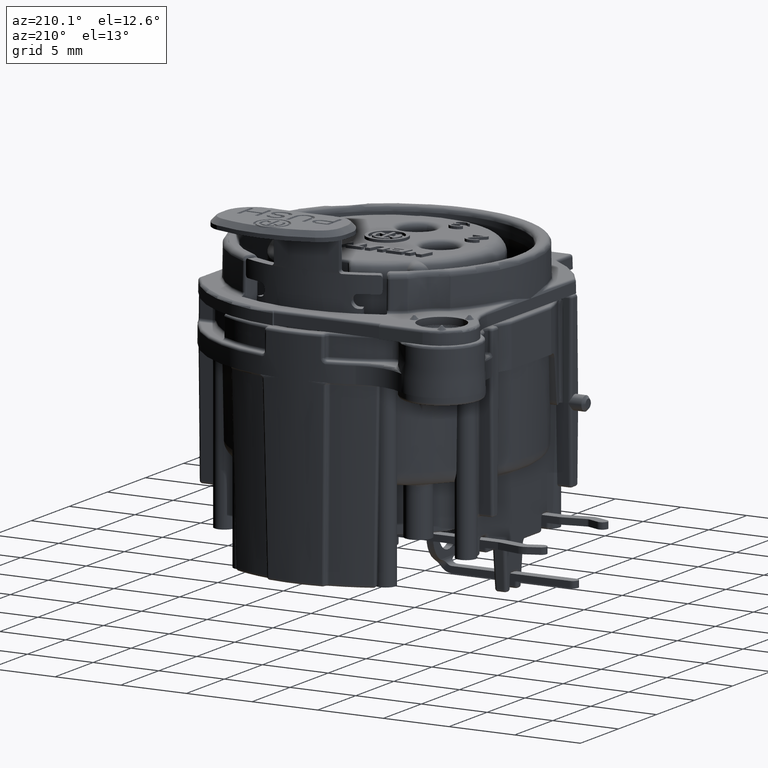
[diagram: clean part render]
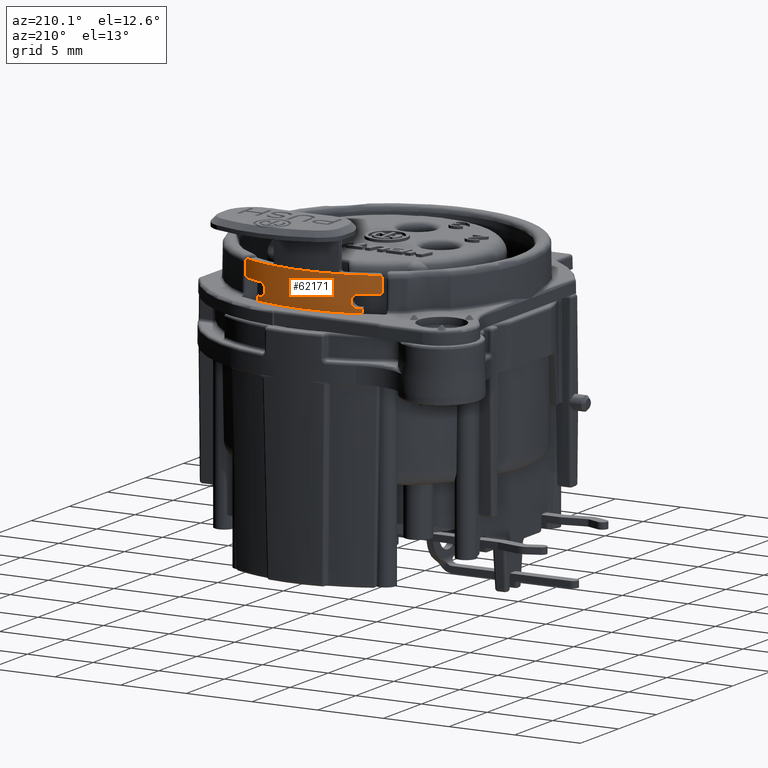
[diagram: same view with one face highlighted and labeled with its STEP entity id]
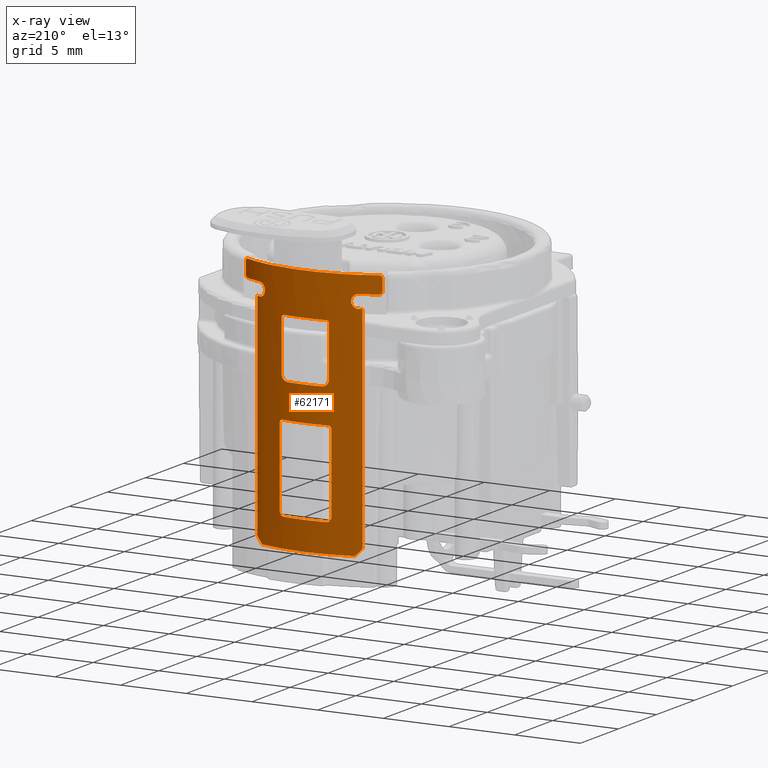
[diagram: x-ray of the same camera — body ghosted, the highlighted face saturated]
A machine part, auxiliary view. The second image highlights one B-rep face of the part: STEP entity #62171.
The next image is the same camera in x-ray: the body ghosted, the highlighted face saturated — about 0% of this face is hidden behind the body in this view.
In plain terms, the highlighted cylindrical surface (partial cylindrical patch) has radius 10.9 mm, axis along (0, 0, 1).
Its self-contained STEP definition (entity closure, byte-faithful):
#16958=CARTESIAN_POINT('',(0.E0,0.E0,5.75E0));
#16959=DIRECTION('',(0.E0,0.E0,1.E0));
#16960=DIRECTION('',(-3.441377443113E-1,9.389191727408E-1,0.E0));
#16961=AXIS2_PLACEMENT_3D('',#16958,#16959,#16960);
#16973=CARTESIAN_POINT('',(0.E0,0.E0,5.75E0));
#16974=DIRECTION('',(0.E0,0.E0,1.E0));
#16975=DIRECTION('',(4.603378714035E-1,8.877437942062E-1,0.E0));
#16976=AXIS2_PLACEMENT_3D('',#16973,#16974,#16975);
#17001=CARTESIAN_POINT('',(-3.751101412993E0,1.023421898288E1,4.75E0));
#17002=CARTESIAN_POINT('',(-3.706293553371E0,1.025064220245E1,4.75E0));
#17003=CARTESIAN_POINT('',(-3.616542525587E0,1.028284999959E1,
4.763803877901E0));
#17004=CARTESIAN_POINT('',(-3.493003251731E0,1.032539846351E1,
4.823273141545E0));
#17005=CARTESIAN_POINT('',(-3.388866338631E0,1.035994872259E1,
4.918439172250E0));
#17006=CARTESIAN_POINT('',(-3.315232344233E0,1.038365767008E1,
5.038462333102E0));
#17007=CARTESIAN_POINT('',(-3.275971002619E0,1.039606050945E1,
5.178665732796E0));
#17008=CARTESIAN_POINT('',(-3.275971002619E0,1.039606050945E1,
5.321334267204E0));
#17009=CARTESIAN_POINT('',(-3.315232344233E0,1.038365767008E1,
5.461537666898E0));
#17010=CARTESIAN_POINT('',(-3.388866338631E0,1.035994872259E1,
5.581560827750E0));
#17011=CARTESIAN_POINT('',(-3.493003251731E0,1.032539846351E1,
5.676726858455E0));
#17012=CARTESIAN_POINT('',(-3.616542525587E0,1.028284999959E1,
5.736196122099E0));
#17013=CARTESIAN_POINT('',(-3.706293553371E0,1.025064220245E1,5.75E0));
#17014=CARTESIAN_POINT('',(-3.751101412993E0,1.023421898288E1,5.75E0));
#17025=CARTESIAN_POINT('',(0.E0,0.E0,4.75E0));
#17026=DIRECTION('',(0.E0,0.E0,-1.E0));
#17027=DIRECTION('',(-3.669883419622E-1,9.302255408576E-1,0.E0));
#17028=AXIS2_PLACEMENT_3D('',#17025,#17026,#17027);
#17030=CARTESIAN_POINT('',(0.E0,0.E0,4.75E0));
#17031=DIRECTION('',(0.E0,0.E0,-1.E0));
#17032=DIRECTION('',(3.441377443113E-1,9.389191727408E-1,0.E0));
#17033=AXIS2_PLACEMENT_3D('',#17030,#17031,#17032);
#17051=CARTESIAN_POINT('',(-3.943549671944E0,1.016161483156E1,
-1.151080355221E1));
#17053=CARTESIAN_POINT('',(-3.943549671944E0,1.016161483156E1,
-1.151080355221E1));
#17054=CARTESIAN_POINT('',(-3.955758154357E0,1.015687692743E1,
-1.149770815447E1));
#17055=CARTESIAN_POINT('',(-3.976090005614E0,1.014893801995E1,
-1.146919022792E1));
#17056=CARTESIAN_POINT('',(-3.995771633983E0,1.014119667473E1,
-1.141813261460E1));
#17057=CARTESIAN_POINT('',(-4.000172927388E0,1.013945839535E1,
-1.138253099736E1));
#17058=CARTESIAN_POINT('',(-4.000172927388E0,1.013945839535E1,
-1.136400926445E1));
#17077=CARTESIAN_POINT('',(-3.588389503554E0,1.029239820308E1,
-1.188917858461E1));
#17078=CARTESIAN_POINT('',(-3.707556921992E0,1.025085112095E1,
-1.176307871356E1));
#17079=CARTESIAN_POINT('',(-3.825943333947E0,1.020725584859E1,
-1.163695369275E1));
#17080=CARTESIAN_POINT('',(-3.943549671944E0,1.016161483156E1,
-1.151080355221E1));
#17099=CARTESIAN_POINT('',(-3.449321041361E0,1.033983483203E1,-1.195E1));
#17100=CARTESIAN_POINT('',(-3.466906643519E0,1.033396835654E1,-1.195E1));
#17101=CARTESIAN_POINT('',(-3.500680539296E0,1.032260448701E1,
-1.194526651998E1));
#17102=CARTESIAN_POINT('',(-3.549039727289E0,1.030606960005E1,
-1.192411079150E1));
#17103=CARTESIAN_POINT('',(-3.576010527338E0,1.029671406683E1,
-1.190227769614E1));
#17104=CARTESIAN_POINT('',(-3.588389503554E0,1.029239820308E1,
-1.188917858461E1));
#17111=CARTESIAN_POINT('',(0.E0,0.E0,-1.195E1));
#17112=DIRECTION('',(0.E0,0.E0,-1.E0));
#17113=DIRECTION('',(-3.164514716845E-1,9.486087001861E-1,0.E0));
#17114=AXIS2_PLACEMENT_3D('',#17111,#17112,#17113);
#17121=CARTESIAN_POINT('',(3.588389532928E0,1.029239819284E1,
-1.188917855353E1));
#17122=CARTESIAN_POINT('',(3.576010550398E0,1.029671405883E1,
-1.190227767175E1));
#17123=CARTESIAN_POINT('',(3.549039736584E0,1.030606959688E1,
-1.192411077827E1));
#17124=CARTESIAN_POINT('',(3.500680523882E0,1.032260449229E1,
-1.194526651756E1));
#17125=CARTESIAN_POINT('',(3.466906610821E0,1.033396836753E1,-1.195E1));
#17126=CARTESIAN_POINT('',(3.449320999656E0,1.033983484594E1,-1.195E1));
#17140=CARTESIAN_POINT('',(3.588389532928E0,1.029239819284E1,
-1.188917855353E1));
#17141=CARTESIAN_POINT('',(3.707556941448E0,1.025085111378E1,
-1.176307869283E1));
#17142=CARTESIAN_POINT('',(3.825943343612E0,1.020725584484E1,
-1.163695368238E1));
#17143=CARTESIAN_POINT('',(3.943549671944E0,1.016161483156E1,
-1.151080355221E1));
#17150=CARTESIAN_POINT('',(3.943549671944E0,1.016161483156E1,
-1.151080355221E1));
#17162=CARTESIAN_POINT('',(4.000172927388E0,1.013945839535E1,
-1.136400926445E1));
#17167=CARTESIAN_POINT('',(4.000172927388E0,1.013945839535E1,
-1.136400926445E1));
#17168=CARTESIAN_POINT('',(4.000172927388E0,1.013945839535E1,
-1.138253099736E1));
#17169=CARTESIAN_POINT('',(3.995771633983E0,1.014119667473E1,
-1.141813261460E1));
#17170=CARTESIAN_POINT('',(3.976090005614E0,1.014893801995E1,
-1.146919022792E1));
#17171=CARTESIAN_POINT('',(3.955758154357E0,1.015687692743E1,
-1.149770815447E1));
#17172=CARTESIAN_POINT('',(3.943549671944E0,1.016161483156E1,
-1.151080355221E1));
#17174=DIRECTION('',(0.E0,0.E0,-1.E0));
#17175=VECTOR('',#17174,1.611400926445E1);
#17176=CARTESIAN_POINT('',(4.000172927388E0,1.013945839535E1,4.75E0));
#17177=LINE('',#17176,#17175);
#17178=DIRECTION('',(0.E0,0.E0,1.E0));
#17179=VECTOR('',#17178,8.848E-1);
#17180=CARTESIAN_POINT('',(5.201030486830E0,9.579106528015E0,5.9576E0));
#17181=LINE('',#17180,#17179);
#17182=CARTESIAN_POINT('',(0.E0,0.E0,7.05E0));
#17183=DIRECTION('',(0.E0,0.E0,1.E0));
#17184=DIRECTION('',(2.451565970441E-1,9.694834928588E-1,0.E0));
#17185=AXIS2_PLACEMENT_3D('',#17182,#17183,#17184);
#17187=DIRECTION('',(0.E0,0.E0,-1.E0));
#17188=VECTOR('',#17187,1.611400926445E1);
#17189=CARTESIAN_POINT('',(-4.000172927388E0,1.013945839535E1,4.75E0));
#17190=LINE('',#17189,#17188);
#17191=CARTESIAN_POINT('',(0.E0,0.E0,-6.5E-1));
#17192=DIRECTION('',(0.E0,0.E0,1.E0));
#17193=DIRECTION('',(1.187556951318E-1,9.929235040393E-1,0.E0));
#17194=AXIS2_PLACEMENT_3D('',#17191,#17192,#17193);
#17200=CARTESIAN_POINT('',(3.751101412993E0,1.023421898288E1,5.75E0));
#17201=CARTESIAN_POINT('',(3.706293553371E0,1.025064220245E1,5.75E0));
#17202=CARTESIAN_POINT('',(3.616542525587E0,1.028284999959E1,5.736196122099E0));
#17203=CARTESIAN_POINT('',(3.493003251731E0,1.032539846351E1,5.676726858455E0));
#17204=CARTESIAN_POINT('',(3.388866338631E0,1.035994872259E1,5.581560827750E0));
#17205=CARTESIAN_POINT('',(3.315232344233E0,1.038365767008E1,5.461537666898E0));
#17206=CARTESIAN_POINT('',(3.275971002619E0,1.039606050945E1,5.321334267204E0));
#17207=CARTESIAN_POINT('',(3.275971002619E0,1.039606050945E1,5.178665732796E0));
#17208=CARTESIAN_POINT('',(3.315232344233E0,1.038365767008E1,5.038462333102E0));
#17209=CARTESIAN_POINT('',(3.388866338631E0,1.035994872259E1,4.918439172250E0));
#17210=CARTESIAN_POINT('',(3.493003251731E0,1.032539846351E1,4.823273141545E0));
#17211=CARTESIAN_POINT('',(3.616542525587E0,1.028284999959E1,4.763803877901E0));
#17212=CARTESIAN_POINT('',(3.706293553371E0,1.025064220245E1,4.75E0));
#17213=CARTESIAN_POINT('',(3.751101412993E0,1.023421898288E1,4.75E0));
#17237=CARTESIAN_POINT('',(5.017682798298E0,9.676407356848E0,5.75E0));
#17251=CARTESIAN_POINT('',(5.201030486830E0,9.579106528015E0,5.9576E0));
#17253=CARTESIAN_POINT('',(5.201030486830E0,9.579106528015E0,5.9576E0));
#17254=CARTESIAN_POINT('',(5.201030486830E0,9.579106528015E0,5.935354116623E0));
#17255=CARTESIAN_POINT('',(5.195244955554E0,9.582252781037E0,5.893179974350E0));
#17256=CARTESIAN_POINT('',(5.168032454442E0,9.596973696436E0,5.832663009412E0));
#17257=CARTESIAN_POINT('',(5.128241954111E0,9.618321276261E0,5.787510793528E0));
#17258=CARTESIAN_POINT('',(5.074779578914E0,9.646653848372E0,5.756581272349E0));
#17259=CARTESIAN_POINT('',(5.037418883231E0,9.666173247202E0,5.75E0));
#17260=CARTESIAN_POINT('',(5.017682798298E0,9.676407356848E0,5.75E0));
#17269=CARTESIAN_POINT('',(5.017682798298E0,9.676407356848E0,7.05E0));
#17271=CARTESIAN_POINT('',(5.017682798298E0,9.676407356848E0,7.05E0));
#17272=CARTESIAN_POINT('',(5.037418883231E0,9.666173247202E0,7.05E0));
#17273=CARTESIAN_POINT('',(5.074779578914E0,9.646653848372E0,7.043418727651E0));
#17274=CARTESIAN_POINT('',(5.128241954111E0,9.618321276261E0,7.012489206472E0));
#17275=CARTESIAN_POINT('',(5.168032454442E0,9.596973696436E0,6.967336990588E0));
#17276=CARTESIAN_POINT('',(5.195244955554E0,9.582252781037E0,6.906820025650E0));
#17277=CARTESIAN_POINT('',(5.201030486830E0,9.579106528015E0,6.864645883377E0));
#17278=CARTESIAN_POINT('',(5.201030486830E0,9.579106528015E0,6.8424E0));
#17299=CARTESIAN_POINT('',(0.E0,0.E0,7.05E0));
#17300=DIRECTION('',(0.E0,0.E0,1.E0));
#17301=DIRECTION('',(4.603378714035E-1,8.877437942062E-1,0.E0));
#17302=AXIS2_PLACEMENT_3D('',#17299,#17300,#17301);
#17304=CARTESIAN_POINT('',(0.E0,0.E0,7.05E0));
#17305=DIRECTION('',(0.E0,0.E0,1.E0));
#17306=DIRECTION('',(-2.451565970441E-1,9.694834928588E-1,0.E0));
#17307=AXIS2_PLACEMENT_3D('',#17304,#17305,#17306);
#17317=CARTESIAN_POINT('',(2.672214667544E0,1.056736726770E1,7.05E0));
#17349=CARTESIAN_POINT('',(-2.672206744296E0,1.056736927159E1,7.05E0));
#20708=CARTESIAN_POINT('',(-5.017682798298E0,9.676407356848E0,7.05E0));
#20722=CARTESIAN_POINT('',(-5.201030486830E0,9.579106528015E0,6.8424E0));
#20727=CARTESIAN_POINT('',(-5.201030486830E0,9.579106528015E0,6.8424E0));
#20728=CARTESIAN_POINT('',(-5.201030486830E0,9.579106528015E0,
6.864645883377E0));
#20729=CARTESIAN_POINT('',(-5.195244955554E0,9.582252781037E0,
6.906820025650E0));
#20730=CARTESIAN_POINT('',(-5.168032454442E0,9.596973696436E0,
6.967336990588E0));
#20731=CARTESIAN_POINT('',(-5.128241954111E0,9.618321276261E0,
7.012489206472E0));
#20732=CARTESIAN_POINT('',(-5.074779578914E0,9.646653848372E0,
7.043418727651E0));
#20733=CARTESIAN_POINT('',(-5.037418883231E0,9.666173247202E0,7.05E0));
#20734=CARTESIAN_POINT('',(-5.017682798298E0,9.676407356848E0,7.05E0));
#20736=DIRECTION('',(0.E0,0.E0,1.E0));
#20737=VECTOR('',#20736,8.848E-1);
#20738=CARTESIAN_POINT('',(-5.201030486830E0,9.579106528015E0,5.9576E0));
#20739=LINE('',#20738,#20737);
#20740=CARTESIAN_POINT('',(-5.017682798298E0,9.676407356848E0,5.75E0));
#20745=CARTESIAN_POINT('',(-5.017682798298E0,9.676407356848E0,5.75E0));
#20746=CARTESIAN_POINT('',(-5.037418883231E0,9.666173247202E0,5.75E0));
#20747=CARTESIAN_POINT('',(-5.074779578914E0,9.646653848372E0,
5.756581272349E0));
#20748=CARTESIAN_POINT('',(-5.128241954111E0,9.618321276261E0,
5.787510793528E0));
#20749=CARTESIAN_POINT('',(-5.168032454442E0,9.596973696436E0,
5.832663009412E0));
#20750=CARTESIAN_POINT('',(-5.195244955554E0,9.582252781037E0,
5.893179974350E0));
#20751=CARTESIAN_POINT('',(-5.201030486830E0,9.579106528015E0,
5.935354116623E0));
#20752=CARTESIAN_POINT('',(-5.201030486830E0,9.579106528015E0,5.9576E0));
#20794=CARTESIAN_POINT('',(-1.808249726453E0,1.074896427228E1,
-1.304391948930E-1));
#20801=CARTESIAN_POINT('',(-1.808249726453E0,1.074896427228E1,
-1.304391948930E-1));
#20802=CARTESIAN_POINT('',(-1.808249726448E0,1.074896427228E1,
-1.768727490492E-1));
#20803=CARTESIAN_POINT('',(-1.796458107802E0,1.075095773913E1,
-2.661897472978E-1));
#20804=CARTESIAN_POINT('',(-1.744667221852E0,1.075953849095E1,
-3.935489598850E-1));
#20805=CARTESIAN_POINT('',(-1.662147765723E0,1.077266720350E1,
-5.022063706228E-1));
#20806=CARTESIAN_POINT('',(-1.554745016213E0,1.078876878783E1,
-5.856715590598E-1));
#20807=CARTESIAN_POINT('',(-1.428761304067E0,1.080622063447E1,
-6.380790457911E-1));
#20808=CARTESIAN_POINT('',(-1.340385028420E0,1.081736836842E1,
-6.499999999997E-1));
#20809=CARTESIAN_POINT('',(-1.294427589814E0,1.082286493253E1,
-6.499999999997E-1));
#20832=DIRECTION('',(0.E0,-3.107462188134E-14,1.E0));
#20833=VECTOR('',#20832,3.772839194893E0);
#20834=CARTESIAN_POINT('',(-1.808249726453E0,1.074896427228E1,
-1.304391948930E-1));
#20835=LINE('',#20834,#20833);
#20871=CARTESIAN_POINT('',(-1.603240848050E0,1.078144789827E1,3.85E0));
#20876=CARTESIAN_POINT('',(-1.603240848050E0,1.078144789827E1,3.85E0));
#20877=CARTESIAN_POINT('',(-1.625230783320E0,1.077817791424E1,3.85E0));
#20878=CARTESIAN_POINT('',(-1.666905490989E0,1.077184962432E1,
3.843418727651E0));
#20879=CARTESIAN_POINT('',(-1.726671263529E0,1.076241497346E1,
3.812489206472E0));
#20880=CARTESIAN_POINT('',(-1.771237788030E0,1.075514668791E1,
3.767336990588E0));
#20881=CARTESIAN_POINT('',(-1.801756018830E0,1.075006110478E1,
3.706820025650E0));
#20882=CARTESIAN_POINT('',(-1.808249726453E0,1.074896427228E1,
3.664645883377E0));
#20883=CARTESIAN_POINT('',(-1.808249726453E0,1.074896427228E1,3.6424E0));
#20885=CARTESIAN_POINT('',(-1.808249726453E0,1.074896427228E1,3.6424E0));
#20904=CARTESIAN_POINT('',(0.E0,0.E0,3.85E0));
#20905=DIRECTION('',(0.E0,0.E0,1.E0));
#20906=DIRECTION('',(1.470880426811E-1,9.891234036763E-1,0.E0));
#20907=AXIS2_PLACEMENT_3D('',#20904,#20905,#20906);
#20912=CARTESIAN_POINT('',(1.603259665224E0,1.078144510007E1,3.85E0));
#20926=CARTESIAN_POINT('',(1.808268486932E0,1.074896111627E1,3.6424E0));
#20928=CARTESIAN_POINT('',(1.808268486932E0,1.074896111627E1,3.6424E0));
#20929=CARTESIAN_POINT('',(1.808268486932E0,1.074896111627E1,3.664645883377E0));
#20930=CARTESIAN_POINT('',(1.801774781223E0,1.075005796011E1,3.706820025650E0));
#20931=CARTESIAN_POINT('',(1.771256559300E0,1.075514359650E1,3.767336990588E0));
#20932=CARTESIAN_POINT('',(1.726690047484E0,1.076241195983E1,3.812489206472E0));
#20933=CARTESIAN_POINT('',(1.666924291410E0,1.077184671501E1,3.843418727651E0));
#20934=CARTESIAN_POINT('',(1.625249594787E0,1.077817507766E1,3.85E0));
#20935=CARTESIAN_POINT('',(1.603259665224E0,1.078144510007E1,3.85E0));
#20937=DIRECTION('',(2.676804802386E-10,-6.666229714566E-11,1.E0));
#20938=VECTOR('',#20937,3.772829528465E0);
#20939=CARTESIAN_POINT('',(1.808268485922E0,1.074896111653E1,
-1.304295284653E-1));
#20940=LINE('',#20939,#20938);
#21010=CARTESIAN_POINT('',(1.294436912829E0,1.082286381735E1,
-6.499999937383E-1));
#21012=CARTESIAN_POINT('',(1.294436912829E0,1.082286381735E1,
-6.499999937383E-1));
#21013=CARTESIAN_POINT('',(1.340395194997E0,1.081736711219E1,
-6.499999937383E-1));
#21014=CARTESIAN_POINT('',(1.428773093520E0,1.080621908552E1,
-6.380787992177E-1));
#21015=CARTESIAN_POINT('',(1.554759099676E0,1.078876676651E1,
-5.856703651459E-1));
#21016=CARTESIAN_POINT('',(1.662163850487E0,1.077266472708E1,
-5.022036008431E-1));
#21017=CARTESIAN_POINT('',(1.744684798938E0,1.075953564343E1,
-3.935442025705E-1));
#21018=CARTESIAN_POINT('',(1.796476653523E0,1.075095464078E1,
-2.661825724443E-1));
#21019=CARTESIAN_POINT('',(1.808268482786E0,1.074896111705E1,
-1.768639466733E-1));
#21020=CARTESIAN_POINT('',(1.808268485922E0,1.074896111653E1,
-1.304295284653E-1));
#21022=CARTESIAN_POINT('',(1.808268485922E0,1.074896111653E1,
-1.304295284653E-1));
#21033=DIRECTION('',(0.E0,0.E0,1.E0));
#21034=VECTOR('',#21033,5.986949664403E0);
#21035=CARTESIAN_POINT('',(1.961633253379E0,1.072203315511E1,
-9.444549664403E0));
#21036=LINE('',#21035,#21034);
#21041=CARTESIAN_POINT('',(1.626229963520E0,1.077800427286E1,
-9.784549664403E0));
#21042=CARTESIAN_POINT('',(1.655168950140E0,1.077363783859E1,
-9.784549664403E0));
#21043=CARTESIAN_POINT('',(1.713328424385E0,1.076462172108E1,
-9.777071237288E0));
#21044=CARTESIAN_POINT('',(1.796819165151E0,1.075097640037E1,
-9.742053538019E0));
#21045=CARTESIAN_POINT('',(1.866156408259E0,1.073912220016E1,
-9.687685028162E0));
#21046=CARTESIAN_POINT('',(1.919739266827E0,1.072964462635E1,
-9.617385326010E0));
#21047=CARTESIAN_POINT('',(1.954303197206E0,1.072337893888E1,
-9.532591015746E0));
#21048=CARTESIAN_POINT('',(1.961633253379E0,1.072203315511E1,
-9.473774481423E0));
#21049=CARTESIAN_POINT('',(1.961633253379E0,1.072203315511E1,
-9.444549664403E0));
#21078=CARTESIAN_POINT('',(1.271424008977E0,1.082558471265E1,
-9.784549664396E0));
#21080=CARTESIAN_POINT('',(0.E0,0.E0,-9.784549664403E0));
#21081=DIRECTION('',(0.E0,0.E0,1.E0));
#21082=DIRECTION('',(1.491954094973E-1,9.888077314549E-1,0.E0));
#21083=AXIS2_PLACEMENT_3D('',#21080,#21081,#21082);
#21098=CARTESIAN_POINT('',(0.E0,0.E0,-9.784549664403E0));
#21099=DIRECTION('',(0.E0,0.E0,1.E0));
#21100=DIRECTION('',(-8.560928481689E-2,9.963287862714E-1,0.E0));
#21101=AXIS2_PLACEMENT_3D('',#21098,#21099,#21100);
#21708=CARTESIAN_POINT('',(-9.331412037433E-1,1.085998377042E1,
-9.784549664403E0));
#22243=CARTESIAN_POINT('',(0.E0,0.E0,-9.784549664404E0));
#22244=DIRECTION('',(0.E0,0.E0,-1.E0));
#22245=DIRECTION('',(-8.560928481689E-2,9.963287862714E-1,0.E0));
#22246=AXIS2_PLACEMENT_3D('',#22243,#22244,#22245);
#25517=CARTESIAN_POINT('',(-1.961633253379E0,1.072203315511E1,
-9.444549664403E0));
#25518=CARTESIAN_POINT('',(-1.961633253379E0,1.072203315511E1,
-9.473773488331E0));
#25519=CARTESIAN_POINT('',(-1.954303512945E0,1.072337887939E1,
-9.532588226939E0));
#25520=CARTESIAN_POINT('',(-1.919742807618E0,1.072964398964E1,
-9.617378838917E0));
#25521=CARTESIAN_POINT('',(-1.866160516635E0,1.073912148654E1,
-9.687681168790E0));
#25522=CARTESIAN_POINT('',(-1.796822672678E0,1.075097581698E1,
-9.742051643146E0));
#25523=CARTESIAN_POINT('',(-1.713330316298E0,1.076462142508E1,
-9.777070925836E0));
#25524=CARTESIAN_POINT('',(-1.655169580769E0,1.077363774344E1,
-9.784549664403E0));
#25525=CARTESIAN_POINT('',(-1.626229963520E0,1.077800427286E1,
-9.784549664403E0));
#25535=DIRECTION('',(0.E0,0.E0,1.E0));
#25536=VECTOR('',#25535,5.986949664403E0);
#25537=CARTESIAN_POINT('',(-1.961633253379E0,1.072203315511E1,
-9.444549664403E0));
#25538=LINE('',#25537,#25536);
#25539=CARTESIAN_POINT('',(-1.757109384828E0,1.075744238236E1,-3.25E0));
#25544=CARTESIAN_POINT('',(-1.757109384828E0,1.075744238236E1,-3.25E0));
#25545=CARTESIAN_POINT('',(-1.779050358237E0,1.075385856671E1,-3.25E0));
#25546=CARTESIAN_POINT('',(-1.820630401653E0,1.074693552532E1,
-3.256581272349E0));
#25547=CARTESIAN_POINT('',(-1.880255283652E0,1.073664797698E1,
-3.287510793528E0));
#25548=CARTESIAN_POINT('',(-1.924713419247E0,1.072874372115E1,
-3.332663009412E0));
#25549=CARTESIAN_POINT('',(-1.955155878715E0,1.072322264983E1,
-3.393179974350E0));
#25550=CARTESIAN_POINT('',(-1.961633253379E0,1.072203315511E1,
-3.435354116623E0));
#25551=CARTESIAN_POINT('',(-1.961633253379E0,1.072203315511E1,-3.4576E0));
#25553=CARTESIAN_POINT('',(-1.961633253379E0,1.072203315511E1,-3.4576E0));
#25572=CARTESIAN_POINT('',(0.E0,0.E0,-3.25E0));
#25573=DIRECTION('',(0.E0,0.E0,1.E0));
#25574=DIRECTION('',(1.612026958558E-1,9.869213194824E-1,0.E0));
#25575=AXIS2_PLACEMENT_3D('',#25572,#25573,#25574);
#25580=CARTESIAN_POINT('',(1.757109384828E0,1.075744238236E1,-3.25E0));
#25594=CARTESIAN_POINT('',(1.961633253379E0,1.072203315511E1,-3.4576E0));
#25596=CARTESIAN_POINT('',(1.961633253379E0,1.072203315511E1,-3.4576E0));
#25597=CARTESIAN_POINT('',(1.961633253379E0,1.072203315511E1,
-3.435354116623E0));
#25598=CARTESIAN_POINT('',(1.955155878715E0,1.072322264983E1,
-3.393179974350E0));
#25599=CARTESIAN_POINT('',(1.924713419247E0,1.072874372115E1,
-3.332663009412E0));
#25600=CARTESIAN_POINT('',(1.880255283652E0,1.073664797698E1,
-3.287510793528E0));
#25601=CARTESIAN_POINT('',(1.820630401653E0,1.074693552532E1,
-3.256581272349E0));
#25602=CARTESIAN_POINT('',(1.779050358237E0,1.075385856671E1,-3.25E0));
#25603=CARTESIAN_POINT('',(1.757109384828E0,1.075744238236E1,-3.25E0));
#37113=CARTESIAN_POINT('',(4.000172927388E0,1.013945839535E1,4.75E0));
#37115=VERTEX_POINT('',#37113);
#37118=CARTESIAN_POINT('',(-4.000172927388E0,1.013945839535E1,4.75E0));
#37120=VERTEX_POINT('',#37118);
#37134=VERTEX_POINT('',#21708);
#37143=VERTEX_POINT('',#25539);
#37145=VERTEX_POINT('',#25553);
#37148=VERTEX_POINT('',#25580);
#37150=VERTEX_POINT('',#25594);
#37151=VERTEX_POINT('',#20871);
#37153=VERTEX_POINT('',#20885);
#37156=VERTEX_POINT('',#20912);
#37158=VERTEX_POINT('',#20926);
#37160=VERTEX_POINT('',#17317);
#37164=VERTEX_POINT('',#17349);
#37168=VERTEX_POINT('',#17237);
#37170=VERTEX_POINT('',#17251);
#37172=VERTEX_POINT('',#17269);
#37173=VERTEX_POINT('',#17278);
#37175=VERTEX_POINT('',#20708);
#37178=VERTEX_POINT('',#20722);
#37179=VERTEX_POINT('',#20740);
#37181=VERTEX_POINT('',#20752);
#37184=VERTEX_POINT('',#17051);
#37185=VERTEX_POINT('',#17058);
#37187=VERTEX_POINT('',#17150);
#37190=VERTEX_POINT('',#17162);
#37192=VERTEX_POINT('',#17140);
#37193=VERTEX_POINT('',#17077);
#37199=CARTESIAN_POINT('',(-3.449321041361E0,1.033983483203E1,-1.195E1));
#37200=CARTESIAN_POINT('',(3.449320999656E0,1.033983484594E1,-1.195E1));
#37201=VERTEX_POINT('',#37199);
#37202=VERTEX_POINT('',#37200);
#37218=VERTEX_POINT('',#21022);
#37219=VERTEX_POINT('',#21010);
#37225=VERTEX_POINT('',#20794);
#37227=VERTEX_POINT('',#20809);
#37242=CARTESIAN_POINT('',(-3.751101412993E0,1.023421898288E1,5.75E0));
#37244=VERTEX_POINT('',#37242);
#37246=CARTESIAN_POINT('',(-3.751101412993E0,1.023421898288E1,4.75E0));
#37248=VERTEX_POINT('',#37246);
#37249=CARTESIAN_POINT('',(3.751101412993E0,1.023421898288E1,5.75E0));
#37251=VERTEX_POINT('',#37249);
#37253=CARTESIAN_POINT('',(3.751101412993E0,1.023421898288E1,4.75E0));
#37255=VERTEX_POINT('',#37253);
#38174=CARTESIAN_POINT('',(-1.626229963520E0,1.077800427286E1,
-9.784549664403E0));
#38176=VERTEX_POINT('',#38174);
#38178=CARTESIAN_POINT('',(-1.961633253379E0,1.072203315511E1,
-9.444549664403E0));
#38180=VERTEX_POINT('',#38178);
#38181=CARTESIAN_POINT('',(1.626229963520E0,1.077800427286E1,
-9.784549664403E0));
#38183=VERTEX_POINT('',#38181);
#38185=CARTESIAN_POINT('',(1.961633253379E0,1.072203315511E1,
-9.444549664403E0));
#38187=VERTEX_POINT('',#38185);
#38192=VERTEX_POINT('',#21078);
#62090=CARTESIAN_POINT('',(0.E0,0.E0,5.75E0));
#62091=DIRECTION('',(0.E0,0.E0,1.E0));
#62092=DIRECTION('',(1.E0,0.E0,0.E0));
#62093=AXIS2_PLACEMENT_3D('',#62090,#62091,#62092);
#62094=CYLINDRICAL_SURFACE('',#62093,1.09E1);
#62095=ORIENTED_EDGE('',*,*,#61909,.F.);
#62097=ORIENTED_EDGE('',*,*,#62096,.F.);
#62098=ORIENTED_EDGE('',*,*,#61869,.F.);
#62100=ORIENTED_EDGE('',*,*,#62099,.F.);
#62102=ORIENTED_EDGE('',*,*,#62101,.T.);
#62104=ORIENTED_EDGE('',*,*,#62103,.F.);
#62106=ORIENTED_EDGE('',*,*,#62105,.T.);
#62108=ORIENTED_EDGE('',*,*,#62107,.T.);
#62110=ORIENTED_EDGE('',*,*,#62109,.T.);
#62112=ORIENTED_EDGE('',*,*,#62111,.F.);
#62114=ORIENTED_EDGE('',*,*,#62113,.F.);
#62116=ORIENTED_EDGE('',*,*,#62115,.F.);
#62117=ORIENTED_EDGE('',*,*,#61851,.F.);
#62118=ORIENTED_EDGE('',*,*,#61883,.F.);
#62119=ORIENTED_EDGE('',*,*,#61897,.F.);
#62120=ORIENTED_EDGE('',*,*,#61924,.T.);
#62121=ORIENTED_EDGE('',*,*,#61950,.F.);
#62122=ORIENTED_EDGE('',*,*,#61966,.F.);
#62123=ORIENTED_EDGE('',*,*,#61992,.F.);
#62124=ORIENTED_EDGE('',*,*,#62005,.T.);
#62125=ORIENTED_EDGE('',*,*,#62030,.F.);
#62126=ORIENTED_EDGE('',*,*,#62044,.T.);
#62127=ORIENTED_EDGE('',*,*,#62072,.F.);
#62128=ORIENTED_EDGE('',*,*,#62085,.F.);
#62129=EDGE_LOOP('',(#62095,#62097,#62098,#62100,#62102,#62104,#62106,#62108,
#62110,#62112,#62114,#62116,#62117,#62118,#62119,#62120,#62121,#62122,#62123,
#62124,#62125,#62126,#62127,#62128));
#62130=FACE_OUTER_BOUND('',#62129,.F.);
#62132=ORIENTED_EDGE('',*,*,#62131,.T.);
#62134=ORIENTED_EDGE('',*,*,#62133,.F.);
#62136=ORIENTED_EDGE('',*,*,#62135,.T.);
#62138=ORIENTED_EDGE('',*,*,#62137,.F.);
#62140=ORIENTED_EDGE('',*,*,#62139,.F.);
#62142=ORIENTED_EDGE('',*,*,#62141,.F.);
#62144=ORIENTED_EDGE('',*,*,#62143,.F.);
#62146=ORIENTED_EDGE('',*,*,#62145,.F.);
#62147=EDGE_LOOP('',(#62132,#62134,#62136,#62138,#62140,#62142,#62144,#62146));
#62148=FACE_BOUND('',#62147,.F.);
#62150=ORIENTED_EDGE('',*,*,#62149,.F.);
#62152=ORIENTED_EDGE('',*,*,#62151,.F.);
#62154=ORIENTED_EDGE('',*,*,#62153,.T.);
#62156=ORIENTED_EDGE('',*,*,#62155,.F.);
#62158=ORIENTED_EDGE('',*,*,#62157,.T.);
#62160=ORIENTED_EDGE('',*,*,#62159,.F.);
#62162=ORIENTED_EDGE('',*,*,#62161,.T.);
#62164=ORIENTED_EDGE('',*,*,#62163,.F.);
#62166=ORIENTED_EDGE('',*,*,#62165,.F.);
#62168=ORIENTED_EDGE('',*,*,#62167,.F.);
#62169=EDGE_LOOP('',(#62150,#62152,#62154,#62156,#62158,#62160,#62162,#62164,
#62166,#62168));
#62170=FACE_BOUND('',#62169,.F.);
#16962=CIRCLE('',#16961,1.09E1);
#16977=CIRCLE('',#16976,1.09E1);
#17015=B_SPLINE_CURVE_WITH_KNOTS('',3,(#17001,#17002,#17003,#17004,#17005,
#17006,#17007,#17008,#17009,#17010,#17011,#17012,#17013,#17014),.UNSPECIFIED.,
.F.,.F.,(4,1,1,1,1,1,1,1,1,1,1,4),(0.E0,9.090909090909E-2,1.818181818182E-1,
2.727272727273E-1,3.636363636364E-1,4.545454545455E-1,5.454545454545E-1,
6.363636363636E-1,7.272727272727E-1,8.181818181818E-1,9.090909090909E-1,1.E0),
.UNSPECIFIED.);
#17029=CIRCLE('',#17028,1.09E1);
#17034=CIRCLE('',#17033,1.09E1);
#17059=B_SPLINE_CURVE_WITH_KNOTS('',3,(#17053,#17054,#17055,#17056,#17057,
#17058),.UNSPECIFIED.,.F.,.F.,(4,1,1,4),(0.E0,3.333333333333E-1,
6.666666666667E-1,1.E0),.UNSPECIFIED.);
#17081=B_SPLINE_CURVE_WITH_KNOTS('',3,(#17077,#17078,#17079,#17080),
.UNSPECIFIED.,.F.,.F.,(4,4),(0.E0,1.E0),.UNSPECIFIED.);
#17105=B_SPLINE_CURVE_WITH_KNOTS('',3,(#17099,#17100,#17101,#17102,#17103,
#17104),.UNSPECIFIED.,.F.,.F.,(4,1,1,4),(0.E0,3.333333333333E-1,
6.666666666667E-1,1.E0),.UNSPECIFIED.);
#17115=CIRCLE('',#17114,1.09E1);
#17127=B_SPLINE_CURVE_WITH_KNOTS('',3,(#17121,#17122,#17123,#17124,#17125,
#17126),.UNSPECIFIED.,.F.,.F.,(4,1,1,4),(0.E0,3.333333333333E-1,
6.666666666667E-1,1.E0),.UNSPECIFIED.);
#17144=B_SPLINE_CURVE_WITH_KNOTS('',3,(#17140,#17141,#17142,#17143),
.UNSPECIFIED.,.F.,.F.,(4,4),(0.E0,1.E0),.UNSPECIFIED.);
#17173=B_SPLINE_CURVE_WITH_KNOTS('',3,(#17167,#17168,#17169,#17170,#17171,
#17172),.UNSPECIFIED.,.F.,.F.,(4,1,1,4),(0.E0,3.333333333333E-1,
6.666666666667E-1,1.E0),.UNSPECIFIED.);
#17186=CIRCLE('',#17185,1.09E1);
#17195=CIRCLE('',#17194,1.09E1);
#17214=B_SPLINE_CURVE_WITH_KNOTS('',3,(#17200,#17201,#17202,#17203,#17204,
#17205,#17206,#17207,#17208,#17209,#17210,#17211,#17212,#17213),.UNSPECIFIED.,
.F.,.F.,(4,1,1,1,1,1,1,1,1,1,1,4),(0.E0,9.090909090909E-2,1.818181818182E-1,
2.727272727273E-1,3.636363636364E-1,4.545454545455E-1,5.454545454545E-1,
6.363636363636E-1,7.272727272727E-1,8.181818181818E-1,9.090909090909E-1,1.E0),
.UNSPECIFIED.);
#17261=B_SPLINE_CURVE_WITH_KNOTS('',3,(#17253,#17254,#17255,#17256,#17257,
#17258,#17259,#17260),.UNSPECIFIED.,.F.,.F.,(4,1,1,1,1,4),(0.E0,2.E-1,4.E-1,
6.E-1,8.E-1,1.E0),.UNSPECIFIED.);
#17279=B_SPLINE_CURVE_WITH_KNOTS('',3,(#17271,#17272,#17273,#17274,#17275,
#17276,#17277,#17278),.UNSPECIFIED.,.F.,.F.,(4,1,1,1,1,4),(0.E0,2.E-1,4.E-1,
6.E-1,8.E-1,1.E0),.UNSPECIFIED.);
#17303=CIRCLE('',#17302,1.09E1);
#17308=CIRCLE('',#17307,1.09E1);
#20735=B_SPLINE_CURVE_WITH_KNOTS('',3,(#20727,#20728,#20729,#20730,#20731,
#20732,#20733,#20734),.UNSPECIFIED.,.F.,.F.,(4,1,1,1,1,4),(0.E0,2.E-1,4.E-1,
6.E-1,8.E-1,1.E0),.UNSPECIFIED.);
#20753=B_SPLINE_CURVE_WITH_KNOTS('',3,(#20745,#20746,#20747,#20748,#20749,
#20750,#20751,#20752),.UNSPECIFIED.,.F.,.F.,(4,1,1,1,1,4),(0.E0,2.E-1,4.E-1,
6.E-1,8.E-1,1.E0),.UNSPECIFIED.);
#20810=B_SPLINE_CURVE_WITH_KNOTS('',3,(#20801,#20802,#20803,#20804,#20805,
#20806,#20807,#20808,#20809),.UNSPECIFIED.,.F.,.F.,(4,1,1,1,1,1,4),(0.E0,
1.666666666667E-1,3.333333333333E-1,5.E-1,6.666666666667E-1,8.333333333333E-1,
1.E0),.UNSPECIFIED.);
#20884=B_SPLINE_CURVE_WITH_KNOTS('',3,(#20876,#20877,#20878,#20879,#20880,
#20881,#20882,#20883),.UNSPECIFIED.,.F.,.F.,(4,1,1,1,1,4),(0.E0,2.E-1,4.E-1,
6.E-1,8.E-1,1.E0),.UNSPECIFIED.);
#20908=CIRCLE('',#20907,1.09E1);
#20936=B_SPLINE_CURVE_WITH_KNOTS('',3,(#20928,#20929,#20930,#20931,#20932,
#20933,#20934,#20935),.UNSPECIFIED.,.F.,.F.,(4,1,1,1,1,4),(0.E0,2.E-1,4.E-1,
6.E-1,8.E-1,1.E0),.UNSPECIFIED.);
#21021=B_SPLINE_CURVE_WITH_KNOTS('',3,(#21012,#21013,#21014,#21015,#21016,
#21017,#21018,#21019,#21020),.UNSPECIFIED.,.F.,.F.,(4,1,1,1,1,1,4),(0.E0,
1.666666666667E-1,3.333333333333E-1,5.E-1,6.666666666667E-1,8.333333333333E-1,
1.E0),.UNSPECIFIED.);
#21050=B_SPLINE_CURVE_WITH_KNOTS('',3,(#21041,#21042,#21043,#21044,#21045,
#21046,#21047,#21048,#21049),.UNSPECIFIED.,.F.,.F.,(4,1,1,1,1,1,4),(0.E0,
1.666666666667E-1,3.333333333333E-1,5.E-1,6.666666666667E-1,8.333333333333E-1,
1.E0),.UNSPECIFIED.);
#21084=CIRCLE('',#21083,1.09E1);
#21102=CIRCLE('',#21101,1.09E1);
#22247=CIRCLE('',#22246,1.09E1);
#25526=B_SPLINE_CURVE_WITH_KNOTS('',3,(#25517,#25518,#25519,#25520,#25521,
#25522,#25523,#25524,#25525),.UNSPECIFIED.,.F.,.F.,(4,1,1,1,1,1,4),(0.E0,
1.666666666667E-1,3.333333333333E-1,5.E-1,6.666666666667E-1,8.333333333333E-1,
1.E0),.UNSPECIFIED.);
#25552=B_SPLINE_CURVE_WITH_KNOTS('',3,(#25544,#25545,#25546,#25547,#25548,
#25549,#25550,#25551),.UNSPECIFIED.,.F.,.F.,(4,1,1,1,1,4),(0.E0,2.E-1,4.E-1,
6.E-1,8.E-1,1.E0),.UNSPECIFIED.);
#25576=CIRCLE('',#25575,1.09E1);
#25604=B_SPLINE_CURVE_WITH_KNOTS('',3,(#25596,#25597,#25598,#25599,#25600,
#25601,#25602,#25603),.UNSPECIFIED.,.F.,.F.,(4,1,1,1,1,4),(0.E0,2.E-1,4.E-1,
6.E-1,8.E-1,1.E0),.UNSPECIFIED.);
#61851=EDGE_CURVE('',#37244,#37179,#16962,.T.);
#61869=EDGE_CURVE('',#37168,#37251,#16977,.T.);
#61883=EDGE_CURVE('',#37248,#37244,#17015,.T.);
#61897=EDGE_CURVE('',#37120,#37248,#17029,.T.);
#61909=EDGE_CURVE('',#37255,#37115,#17034,.T.);
#61924=EDGE_CURVE('',#37120,#37185,#17190,.T.);
#61950=EDGE_CURVE('',#37184,#37185,#17059,.T.);
#61966=EDGE_CURVE('',#37193,#37184,#17081,.T.);
#61992=EDGE_CURVE('',#37201,#37193,#17105,.T.);
#62005=EDGE_CURVE('',#37201,#37202,#17115,.T.);
#62030=EDGE_CURVE('',#37192,#37202,#17127,.T.);
#62044=EDGE_CURVE('',#37192,#37187,#17144,.T.);
#62072=EDGE_CURVE('',#37190,#37187,#17173,.T.);
#62085=EDGE_CURVE('',#37115,#37190,#17177,.T.);
#62096=EDGE_CURVE('',#37251,#37255,#17214,.T.);
#62099=EDGE_CURVE('',#37170,#37168,#17261,.T.);
#62101=EDGE_CURVE('',#37170,#37173,#17181,.T.);
#62103=EDGE_CURVE('',#37172,#37173,#17279,.T.);
#62105=EDGE_CURVE('',#37172,#37160,#17303,.T.);
#62107=EDGE_CURVE('',#37160,#37164,#17186,.T.);
#62109=EDGE_CURVE('',#37164,#37175,#17308,.T.);
#62111=EDGE_CURVE('',#37178,#37175,#20735,.T.);
#62113=EDGE_CURVE('',#37181,#37178,#20739,.T.);
#62115=EDGE_CURVE('',#37179,#37181,#20753,.T.);
#62131=EDGE_CURVE('',#37219,#37227,#17195,.T.);
#62133=EDGE_CURVE('',#37225,#37227,#20810,.T.);
#62135=EDGE_CURVE('',#37225,#37153,#20835,.T.);
#62137=EDGE_CURVE('',#37151,#37153,#20884,.T.);
#62139=EDGE_CURVE('',#37156,#37151,#20908,.T.);
#62141=EDGE_CURVE('',#37158,#37156,#20936,.T.);
#62143=EDGE_CURVE('',#37218,#37158,#20940,.T.);
#62145=EDGE_CURVE('',#37219,#37218,#21021,.T.);
#62149=EDGE_CURVE('',#38187,#37150,#21036,.T.);
#62151=EDGE_CURVE('',#38183,#38187,#21050,.T.);
#62153=EDGE_CURVE('',#38183,#38192,#21084,.T.);
#62155=EDGE_CURVE('',#37134,#38192,#22247,.T.);
#62157=EDGE_CURVE('',#37134,#38176,#21102,.T.);
#62159=EDGE_CURVE('',#38180,#38176,#25526,.T.);
#62161=EDGE_CURVE('',#38180,#37145,#25538,.T.);
#62163=EDGE_CURVE('',#37143,#37145,#25552,.T.);
#62165=EDGE_CURVE('',#37148,#37143,#25576,.T.);
#62167=EDGE_CURVE('',#37150,#37148,#25604,.T.);
#62171=ADVANCED_FACE('',(#62130,#62148,#62170),#62094,.T.);